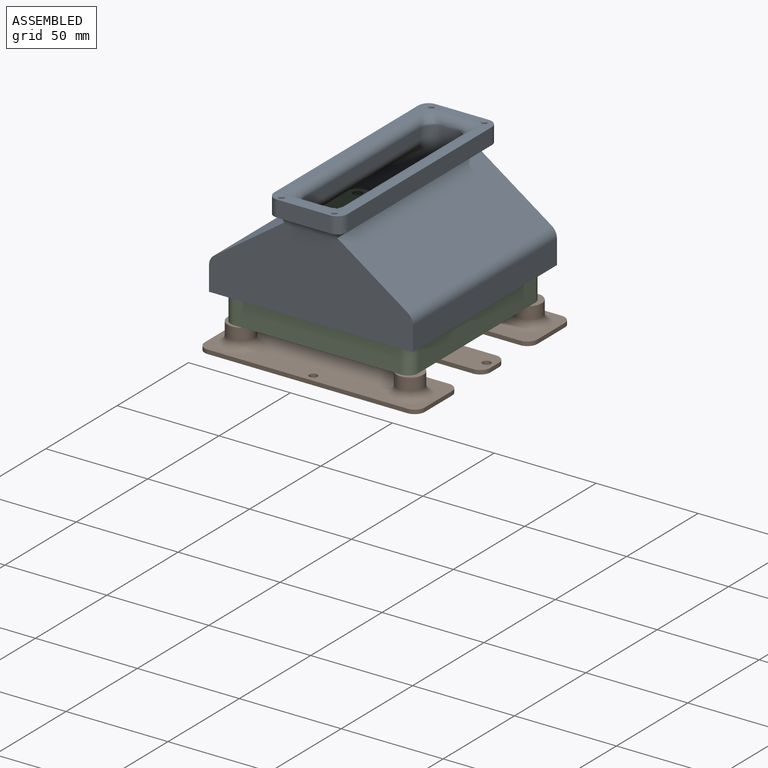
[diagram: assembled view]
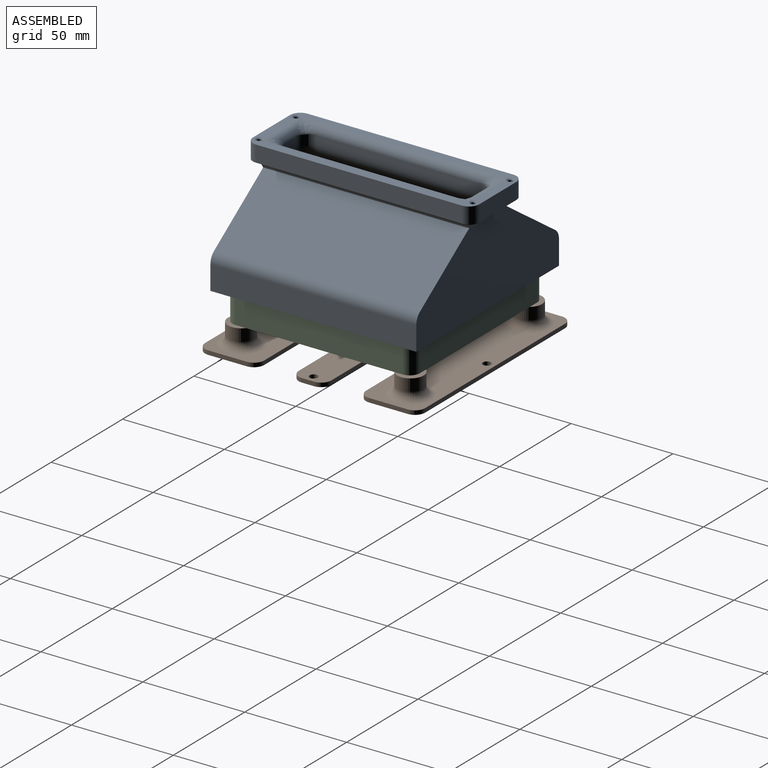
[diagram: assembled view, second angle]
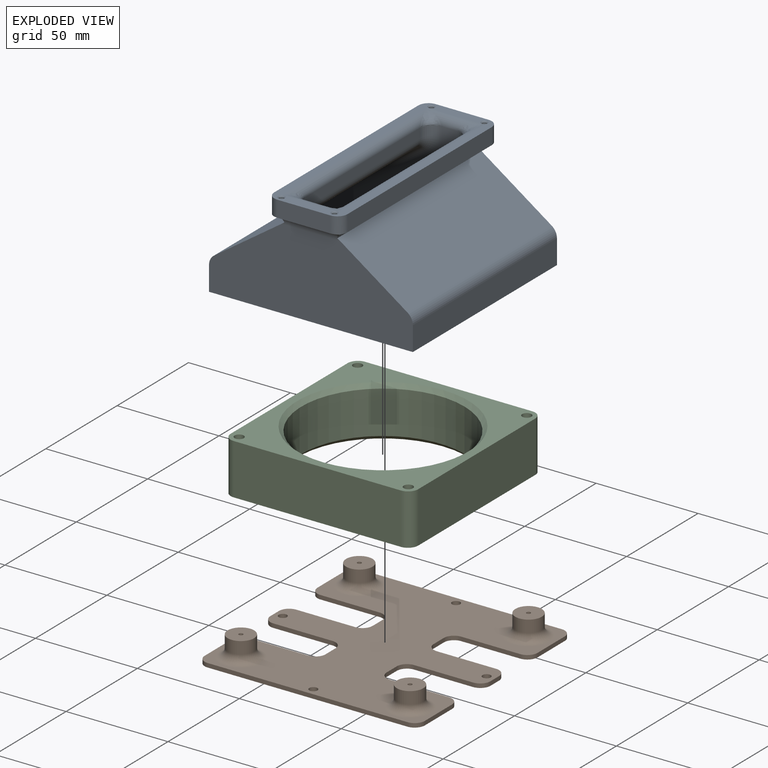
[diagram: exploded view]
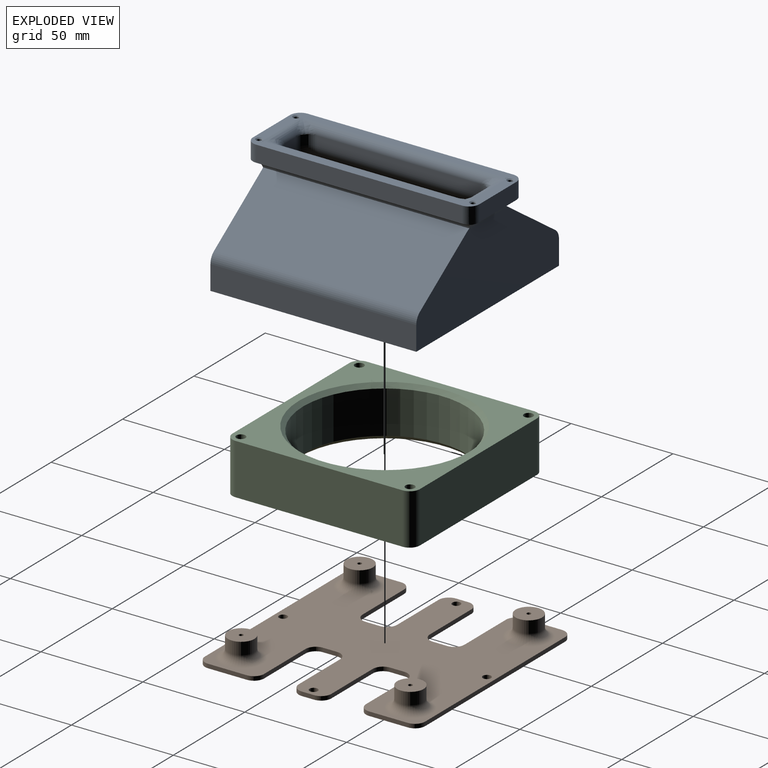
[diagram: exploded view, second angle]
ASSEMBLY  parts=3 mates=2
PART A: 68 faces, bbox 100.8x111x52.6 mm
  f0: plane 103x0.1mm, normal (0,0,-1), area 10.3mm2, adj f18,f32,f34,f35
  f1: plane 100x39.61mm, normal (0,1,0), area 3083.2mm2, adj f2,f3,f8,f11,f12,f30,f66,f67
  f2: plane 101x11.86mm, normal (-1,0,0), area 1197.5mm2, adj f1,f8,f14,f67
  f3: plane 101.21x34.42mm, normal (-0.57,0,0.82), area 4227.6mm2, adj f1,f14,f30,f31,f33,f67
  f4: plane 111x36mm, normal (0,0,1), area 1112.3mm2, adj f17,f18,f19,f20,f34,f35,f36,f37
  f5: plane 81x4.86mm, normal (1,0,0), area 393.3mm2, adj f39,f58,f62,f64
  f6: plane 81x31.83mm, normal (0.57,0,-0.82), area 3135.7mm2, adj f57,f59,f61,f62
  f7: plane 93x11.86mm, normal (1,0,0), area 1099.8mm2, adj f8,f15,f16,f57,f59,f61
  f8: plane 101x100mm, normal (0,0,-1), area 1358mm2, adj f1,f2,f7,f12,f13,f14,f15,f16
  f9: plane 81x31.83mm, normal (-0.57,0,-0.82), area 3135.7mm2, adj f47,f49,f51,f52
  f10: plane 81x4.86mm, normal (-1,0,0), area 393.3mm2, adj f40,f48,f52,f54
  f11: plane 101.21x34.42mm, normal (0.57,0,0.82), area 4227.6mm2, adj f1,f14,f30,f32,f33,f66
  f12: plane 101x11.86mm, normal (1,0,0), area 1197.5mm2, adj f1,f8,f14,f66
  f13: plane 93x11.86mm, normal (-1,0,0), area 1099.8mm2, adj f8,f15,f16,f47,f49,f51
  f14: plane 100x39.61mm, normal (0,-1,0), area 3083.2mm2, adj f2,f3,f8,f11,f12,f33,f66,f67
  f15: plane 94x48.61mm, normal (0,1,0), area 2343.2mm2, adj f7,f8,f13,f38,f51,f53,f54,f57
  f16: plane 94x48.61mm, normal (0,-1,0), area 2343.2mm2, adj f7,f8,f13,f41,f47,f48,f50,f61
  f17: plane 26x8mm, normal (0,-1,0), area 208mm2, adj f4,f33,f34,f37
  f18: plane 101x8mm, normal (1,0,0), area 808mm2, adj f0,f4,f34,f35
  f19: plane 26x8mm, normal (0,1,0), area 208mm2, adj f4,f30,f35,f36
  f20: plane 101x8mm, normal (-1,0,0), area 808mm2, adj f4,f21,f36,f37
  f21: plane 103x0.1mm, normal (0,0,-1), area 10.3mm2, adj f20,f31,f36,f37
  f22: cylinder r=1.15mm len=5.5mm, axis (0,0,1), area 39.7mm2, adj f23,f43
  f23: plane 2.3x2.3mm, normal (0,0,1), area 4.2mm2, adj f22
  f24: cylinder r=1.15mm len=5.5mm, axis (0,0,1), area 39.7mm2, adj f25,f45
  f25: plane 2.3x2.3mm, normal (0,0,1), area 4.2mm2, adj f24
  f26: cylinder r=1.15mm len=5.5mm, axis (0,0,1), area 39.7mm2, adj f27,f44
  f27: plane 2.3x2.3mm, normal (0,0,1), area 4.2mm2, adj f26
  f28: cylinder r=1.15mm len=5.5mm, axis (0,0,1), area 39.7mm2, adj f29,f42
  f29: plane 2.3x2.3mm, normal (0,0,1), area 4.2mm2, adj f28
  f30: cylinder r=5mm len=32.97mm, axis (1,0,0), area 227.6mm2, adj f1,f3,f11,f19,f31,f32,f35,f36
  f31: cylinder r=5mm len=108.17mm, axis (0,1,0), area 715.2mm2, adj f3,f21,f30,f33,f36,f37
  f32: cylinder r=5mm len=108.17mm, axis (0,-1,0), area 715.2mm2, adj f0,f11,f30,f33,f34,f35
  f33: cylinder r=5mm len=32.97mm, axis (1,0,0), area 227.6mm2, adj f3,f11,f14,f17,f31,f32,f34,f37
  f34: cylinder r=5mm len=8.2mm, axis (0,0,1), area 63.1mm2, adj f0,f4,f17,f18,f32,f33
  f35: cylinder r=5mm len=8.2mm, axis (0,0,-1), area 63.1mm2, adj f0,f4,f18,f19,f30,f32
  f36: cylinder r=5mm len=8.2mm, axis (0,0,1), area 63.1mm2, adj f4,f19,f20,f21,f30,f31
  f37: cylinder r=5mm len=8.2mm, axis (0,0,-1), area 63.1mm2, adj f4,f17,f20,f21,f31,f33
  f38: cylinder r=4mm len=28mm, axis (-1,0,0), area 95.9mm2, adj f4,f15,f55,f56
  f39: cylinder r=4mm len=101mm, axis (0,1,0), area 554.6mm2, adj f4,f5,f56,f65
  f40: cylinder r=4mm len=101mm, axis (0,1,0), area 554.6mm2, adj f4,f10,f46,f55
  f41: cylinder r=4mm len=28mm, axis (-1,0,0), area 95.9mm2, adj f4,f16,f46,f65
  f42: cone r=1.15mm half-angle=45deg, axis (0,0,1), area 6.2mm2, adj f4,f28
  f43: cone r=1.15mm half-angle=45deg, axis (0,0,1), area 6.2mm2, adj f4,f22
  f44: cone r=1.15mm half-angle=45deg, axis (0,0,1), area 6.2mm2, adj f4,f26
  f45: cone r=1.15mm half-angle=45deg, axis (0,0,1), area 6.2mm2, adj f4,f24
  f46: bspline ~10x10mm, area 47.2mm2, adj f40,f41,f48
  f47: cylinder r=6mm len=41.25mm, axis (-0.82,0,0.57), area 402.4mm2, adj f9,f13,f16,f49,f50
  f48: cylinder r=6mm len=6mm, axis (0,0,1), area 45.8mm2, adj f10,f16,f46,f50
  f49: cylinder r=6mm len=90.87mm, axis (0,-1,0), area 500.2mm2, adj f9,f13,f47,f51
  f50: torus R=12mm, axis (0,1,0), area 74.4mm2, adj f16,f47,f48,f52
  f51: cylinder r=6mm len=41.25mm, axis (-0.82,0,0.57), area 402.4mm2, adj f9,f13,f15,f49,f53
  f52: cylinder r=6mm len=81mm, axis (0,1,0), area 469.1mm2, adj f9,f10,f50,f53
  f53: torus R=12mm, axis (0,-1,0), area 74.4mm2, adj f15,f51,f52,f54
  f54: cylinder r=6mm len=6mm, axis (0,0,1), area 45.8mm2, adj f10,f15,f53,f55
  f55: bspline ~10x10mm, area 47.2mm2, adj f38,f40,f54
  f56: bspline ~10x10mm, area 47.2mm2, adj f38,f39,f58
  f57: cylinder r=6mm len=41.25mm, axis (-0.82,0,-0.57), area 402.4mm2, adj f6,f7,f15,f59,f60
  f58: cylinder r=6mm len=6mm, axis (0,0,-1), area 45.8mm2, adj f5,f15,f56,f60
  f59: cylinder r=6mm len=90.87mm, axis (0,-1,0), area 500.2mm2, adj f6,f7,f57,f61
  f60: torus R=12mm, axis (0,-1,0), area 74.4mm2, adj f15,f57,f58,f62
  f61: cylinder r=6mm len=41.25mm, axis (-0.82,0,-0.57), area 402.4mm2, adj f6,f7,f16,f59,f63
  f62: cylinder r=6mm len=81mm, axis (0,1,0), area 469.1mm2, adj f5,f6,f60,f63
  f63: torus R=12mm, axis (0,1,0), area 74.4mm2, adj f16,f61,f62,f64
  f64: cylinder r=6mm len=6mm, axis (0,0,-1), area 45.8mm2, adj f5,f16,f63,f65
  f65: bspline ~10x10mm, area 47.2mm2, adj f39,f41,f64
  f66: cylinder r=6mm len=101mm, axis (0,1,0), area 585mm2, adj f1,f11,f12,f14
  f67: cylinder r=6mm len=101mm, axis (0,1,0), area 585mm2, adj f1,f2,f3,f14
PART B: 66 faces, bbox 111.9x111.9x12 mm
  f0: plane 6x2mm, normal (1,0,0), area 12mm2, adj f4,f5,f50,f56
  f1: plane 19x2mm, normal (1,0,0), area 38mm2, adj f4,f5,f57,f62
  f2: plane 6x2mm, normal (-1,0,0), area 12mm2, adj f4,f5,f46,f59
  f3: plane 19x2mm, normal (-1,0,0), area 38mm2, adj f4,f5,f58,f63
  f4: plane 108x108mm, normal (0,0,-1), area 8940.3mm2, adj f0,f1,f2,f3,f6,f7,f8,f9
  f5: plane 108x108mm, normal (0,0,1), area 7554.8mm2, adj f0,f1,f2,f3,f6,f7,f8,f9
  f6: plane 19x2mm, normal (1,0,0), area 38mm2, adj f4,f5,f51,f65
  f7: plane 98x2mm, normal (0,1,0), area 196mm2, adj f4,f5,f62,f63
  f8: plane 19x2mm, normal (-1,0,0), area 38mm2, adj f4,f5,f47,f64
  f9: cylinder r=2mm len=4mm, axis (0,0,1), area 25.1mm2, adj f4,f5
  f10: plane 98x2mm, normal (0,-1,0), area 196mm2, adj f4,f5,f64,f65
  f11: cylinder r=2mm len=4mm, axis (0,0,1), area 25.1mm2, adj f4,f5
  f12: cylinder r=2mm len=4mm, axis (0,0,1), area 25.1mm2, adj f4,f5
  f13: cylinder r=2mm len=4mm, axis (0,0,1), area 25.1mm2, adj f4,f5
  f14: cylinder r=6.5mm len=13mm, axis (0,0,-1), area 245mm2, adj f16,f33
  f15: cylinder r=1mm len=10mm, axis (0,0,-1), area 62.8mm2, adj f16,f17
  f16: plane 13x13mm, normal (0,0,1), area 129.6mm2, adj f14,f15
  f17: plane 2x2mm, normal (0,0,1), area 3.1mm2, adj f15
  f18: cylinder r=6.5mm len=13mm, axis (0,0,-1), area 245mm2, adj f20,f31
  f19: cylinder r=1mm len=10mm, axis (0,0,-1), area 62.8mm2, adj f20,f21
  f20: plane 13x13mm, normal (0,0,1), area 129.6mm2, adj f18,f19
  f21: plane 2x2mm, normal (0,0,1), area 3.1mm2, adj f19
  f22: cylinder r=1mm len=10mm, axis (0,0,-1), area 62.8mm2, adj f24,f25
  f23: cylinder r=6.5mm len=13mm, axis (0,0,-1), area 245mm2, adj f24,f30
  f24: plane 13x13mm, normal (0,0,1), area 129.6mm2, adj f22,f23
  f25: plane 2x2mm, normal (0,0,1), area 3.1mm2, adj f22
  f26: cylinder r=6.5mm len=13mm, axis (0,0,-1), area 245mm2, adj f28,f32
  f27: cylinder r=1mm len=10mm, axis (0,0,-1), area 62.8mm2, adj f28,f29
  f28: plane 13x13mm, normal (0,0,1), area 129.6mm2, adj f26,f27
  f29: plane 2x2mm, normal (0,0,1), area 3.1mm2, adj f27
  f30: torus R=10.5mm, axis (0,0,1), area 314mm2, adj f5,f23
  f31: torus R=10.5mm, axis (0,0,1), area 314mm2, adj f5,f18
  f32: torus R=10.5mm, axis (0,0,1), area 314mm2, adj f5,f26
  f33: torus R=10.5mm, axis (0,0,1), area 314mm2, adj f5,f14
  f34: plane 29x2mm, normal (0,1,0), area 58mm2, adj f4,f5,f59,f61
  f35: plane 29x2mm, normal (0,-1,0), area 58mm2, adj f4,f5,f58,f60
  f36: plane 7x2mm, normal (-1,0,0), area 14mm2, adj f4,f5,f60,f61
  f37: plane 29x2mm, normal (0,1,0), area 58mm2, adj f4,f5,f55,f56
  f38: plane 29x2mm, normal (0,-1,0), area 58mm2, adj f4,f5,f54,f57
  f39: plane 7x2mm, normal (1,0,0), area 14mm2, adj f4,f5,f54,f55
  f40: plane 29x2mm, normal (0,1,0), area 58mm2, adj f4,f5,f51,f52
  f41: plane 29x2mm, normal (0,-1,0), area 58mm2, adj f4,f5,f50,f53
  f42: plane 7x2mm, normal (1,0,0), area 14mm2, adj f4,f5,f52,f53
  f43: plane 29x2mm, normal (0,-1,0), area 58mm2, adj f4,f5,f46,f48
  f44: plane 29x2mm, normal (0,1,0), area 58mm2, adj f4,f5,f47,f49
  f45: plane 7x2mm, normal (-1,0,0), area 14mm2, adj f4,f5,f48,f49
  f46: cylinder r=5mm len=5mm, axis (0,0,1), area 15.7mm2, adj f2,f4,f5,f43
  f47: cylinder r=5mm len=5mm, axis (0,0,-1), area 15.7mm2, adj f4,f5,f8,f44
  f48: cylinder r=5mm len=5mm, axis (0,0,1), area 15.7mm2, adj f4,f5,f43,f45
  f49: cylinder r=5mm len=5mm, axis (0,0,-1), area 15.7mm2, adj f4,f5,f44,f45
  f50: cylinder r=5mm len=5mm, axis (0,0,1), area 15.7mm2, adj f0,f4,f5,f41
  f51: cylinder r=5mm len=5mm, axis (0,0,-1), area 15.7mm2, adj f4,f5,f6,f40
  f52: cylinder r=5mm len=5mm, axis (0,0,-1), area 15.7mm2, adj f4,f5,f40,f42
  f53: cylinder r=5mm len=5mm, axis (0,0,1), area 15.7mm2, adj f4,f5,f41,f42
  f54: cylinder r=5mm len=5mm, axis (0,0,-1), area 15.7mm2, adj f4,f5,f38,f39
  f55: cylinder r=5mm len=5mm, axis (0,0,1), area 15.7mm2, adj f4,f5,f37,f39
  f56: cylinder r=5mm len=5mm, axis (0,0,-1), area 15.7mm2, adj f0,f4,f5,f37
  f57: cylinder r=5mm len=5mm, axis (0,0,1), area 15.7mm2, adj f1,f4,f5,f38
  f58: cylinder r=5mm len=5mm, axis (0,0,1), area 15.7mm2, adj f3,f4,f5,f35
  f59: cylinder r=5mm len=5mm, axis (0,0,-1), area 15.7mm2, adj f2,f4,f5,f34
  f60: cylinder r=5mm len=5mm, axis (0,0,-1), area 15.7mm2, adj f4,f5,f35,f36
  f61: cylinder r=5mm len=5mm, axis (0,0,1), area 15.7mm2, adj f4,f5,f34,f36
  f62: cylinder r=5mm len=5mm, axis (0,0,1), area 15.7mm2, adj f1,f4,f5,f7
  f63: cylinder r=5mm len=5mm, axis (0,0,-1), area 15.7mm2, adj f3,f4,f5,f7
  f64: cylinder r=5mm len=5mm, axis (0,0,1), area 15.7mm2, adj f4,f5,f8,f10
  f65: cylinder r=5mm len=5mm, axis (0,0,-1), area 15.7mm2, adj f4,f5,f6,f10
PART C: 17 faces, bbox 92x25x92 mm
  f0: plane 82x25mm, normal (-1,0,0), area 2050mm2, adj f9,f10,f11,f14
  f1: plane 82x25mm, normal (0,0,-1), area 2050mm2, adj f9,f10,f13,f14
  f2: plane 82x25mm, normal (1,0,0), area 2050mm2, adj f9,f10,f12,f13
  f3: plane 82x25mm, normal (0,0,1), area 2050mm2, adj f9,f10,f11,f12
  f4: cylinder r=2.25mm len=25mm, axis (0,1,0), area 353.4mm2, adj f9,f10
  f5: cylinder r=40mm len=80mm, axis (0,1,0), area 5277.9mm2, adj f15,f16
  f6: cylinder r=2.25mm len=25mm, axis (0,1,0), area 353.4mm2, adj f9,f10
  f7: cylinder r=2.25mm len=25mm, axis (0,1,0), area 353.4mm2, adj f9,f10
  f8: cylinder r=2.25mm len=25mm, axis (0,1,0), area 353.4mm2, adj f9,f10
  f9: plane 92x92mm, normal (0,-1,0), area 2837.2mm2, adj f0,f1,f2,f3,f4,f6,f7,f8
  f10: plane 92x92mm, normal (0,1,0), area 2837.2mm2, adj f0,f1,f2,f3,f4,f6,f7,f8
  f11: cylinder r=5mm len=25mm, axis (0,-1,0), area 196.3mm2, adj f0,f3,f9,f10
  f12: cylinder r=5mm len=25mm, axis (0,1,0), area 196.3mm2, adj f2,f3,f9,f10
  f13: cylinder r=5mm len=25mm, axis (0,-1,0), area 196.3mm2, adj f1,f2,f9,f10
  f14: cylinder r=5mm len=25mm, axis (0,1,0), area 196.3mm2, adj f0,f1,f9,f10
  f15: cone r=42mm half-angle=45deg, axis (0,1,0), area 728.6mm2, adj f5,f10
  f16: cone r=40mm half-angle=45deg, axis (0,-1,0), area 728.6mm2, adj f5,f9
PLACE A t=(-25.57,-80.71,-31.57)mm
PLACE B t=(-25.07,-33.71,-81.94)mm
PLACE C rot(axis=(-1,0,0),90deg) t=(-25.57,-34.21,-71.94)mm
MATE fastened B.f26 <-> C.f14  axis (0,0,1) through (-66.57,-75.21,-71.94)mm
MATE slider C.f5 <-> A.f8  axis (0,0,1) through (-25.57,-34.21,-46.94)mm
